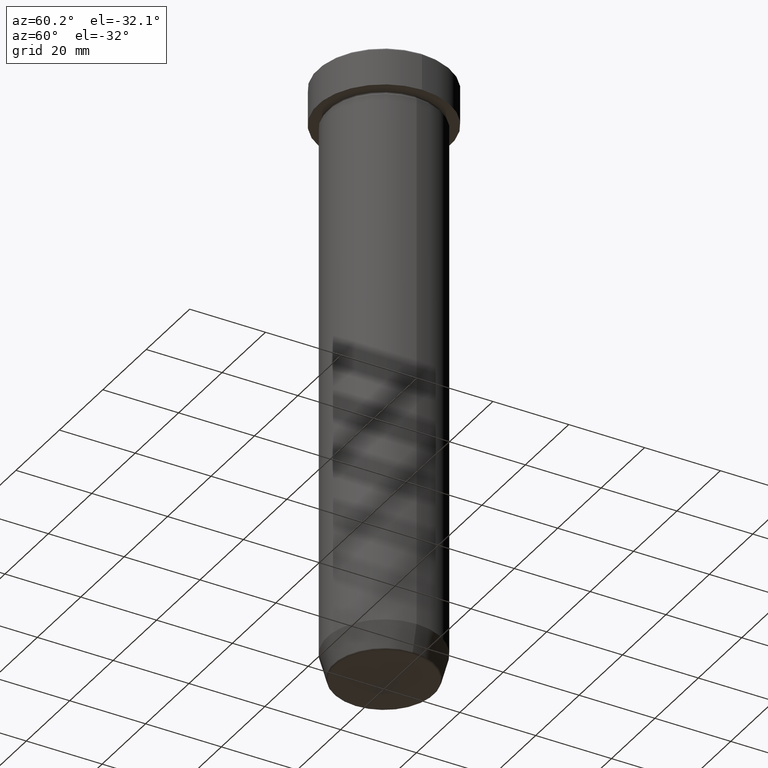
[diagram: clean part render]
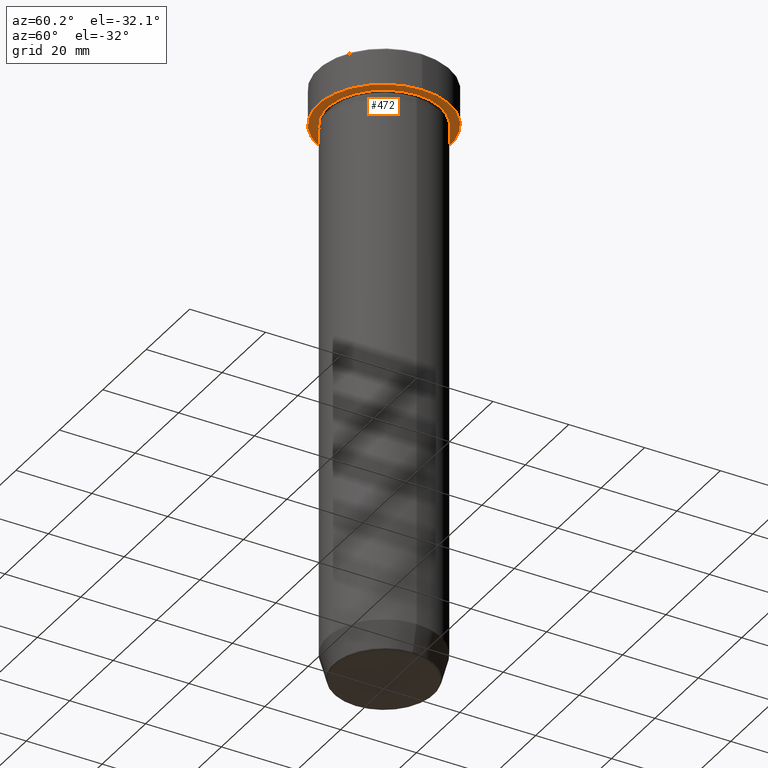
[diagram: same view with one face highlighted and labeled with its STEP entity id]
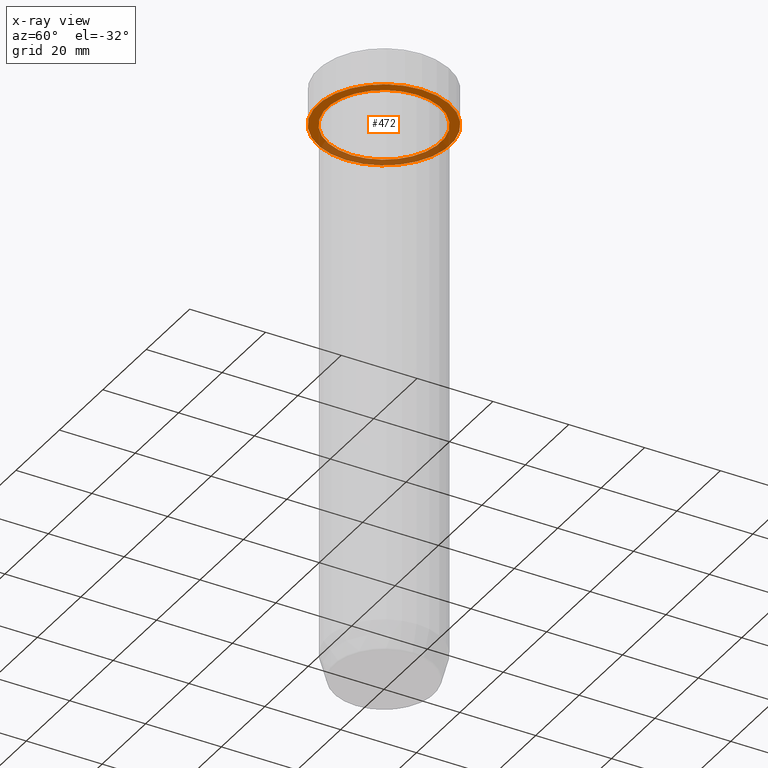
[diagram: x-ray of the same camera — body ghosted, the highlighted face saturated]
A machine part, auxiliary view. The second image highlights one B-rep face of the part: STEP entity #472.
The next image is the same camera in x-ray: the body ghosted, the highlighted face saturated — about 33% of this face is hidden behind the body in this view.
In plain terms, the highlighted planar face has unit normal (0, 0, -1).
Its self-contained STEP definition (entity closure, byte-faithful):
#14 = AXIS2_PLACEMENT_3D ( 'NONE', #116, #70, #536 ) ;
#19 = EDGE_LOOP ( 'NONE', ( #355, #568 ) ) ;
#44 = CARTESIAN_POINT ( 'NONE',  ( 17.50000000000000000, 0.000000000000000000, -9.999999999999998224 ) ) ;
#46 = EDGE_CURVE ( 'NONE', #60, #504, #89, .T. ) ;
#57 = AXIS2_PLACEMENT_3D ( 'NONE', #598, #92, #264 ) ;
#60 = VERTEX_POINT ( 'NONE', #245 ) ;
#64 = CARTESIAN_POINT ( 'NONE',  ( 0.000000000000000000, 0.000000000000000000, -9.999999999999998224 ) ) ;
#70 = DIRECTION ( 'NONE',  ( -0.000000000000000000, -0.000000000000000000, 1.000000000000000000 ) ) ;
#82 = DIRECTION ( 'NONE',  ( -0.000000000000000000, -0.000000000000000000, 1.000000000000000000 ) ) ;
#89 = CIRCLE ( 'NONE', #154, 17.50000000000000000 ) ;
#92 = DIRECTION ( 'NONE',  ( 0.000000000000000000, 0.000000000000000000, -1.000000000000000000 ) ) ;
#111 = EDGE_LOOP ( 'NONE', ( #164, #201 ) ) ;
#116 = CARTESIAN_POINT ( 'NONE',  ( 0.000000000000000000, 0.000000000000000000, -9.999999999999998224 ) ) ;
#131 = PLANE ( 'NONE',  #57 ) ;
#148 = EDGE_CURVE ( 'NONE', #422, #287, #475, .T. ) ;
#154 = AXIS2_PLACEMENT_3D ( 'NONE', #214, #82, #286 ) ;
#164 = ORIENTED_EDGE ( 'NONE', *, *, #352, .F. ) ;
#175 = FACE_BOUND ( 'NONE', #19, .T. ) ;
#201 = ORIENTED_EDGE ( 'NONE', *, *, #46, .F. ) ;
#214 = CARTESIAN_POINT ( 'NONE',  ( 0.000000000000000000, 0.000000000000000000, -9.999999999999998224 ) ) ;
#217 = CARTESIAN_POINT ( 'NONE',  ( 15.00000000000000000, 1.836970198721029589E-15, -9.999999999999998224 ) ) ;
#245 = CARTESIAN_POINT ( 'NONE',  ( -17.50000000000000000, 2.143131898507868248E-15, -9.999999999999998224 ) ) ;
#264 = DIRECTION ( 'NONE',  ( -1.000000000000000000, 0.000000000000000000, -0.000000000000000000 ) ) ;
#268 = CARTESIAN_POINT ( 'NONE',  ( -15.00000000000000000, 0.000000000000000000, -9.999999999999998224 ) ) ;
#281 = DIRECTION ( 'NONE',  ( -0.000000000000000000, -0.000000000000000000, 1.000000000000000000 ) ) ;
#286 = DIRECTION ( 'NONE',  ( 1.000000000000000000, 0.000000000000000000, 0.000000000000000000 ) ) ;
#287 = VERTEX_POINT ( 'NONE', #217 ) ;
#316 = CARTESIAN_POINT ( 'NONE',  ( 0.000000000000000000, 0.000000000000000000, -9.999999999999998224 ) ) ;
#321 = CIRCLE ( 'NONE', #14, 17.50000000000000000 ) ;
#352 = EDGE_CURVE ( 'NONE', #504, #60, #321, .T. ) ;
#353 = DIRECTION ( 'NONE',  ( -1.000000000000000000, 0.000000000000000000, 0.000000000000000000 ) ) ;
#355 = ORIENTED_EDGE ( 'NONE', *, *, #148, .T. ) ;
#364 = CIRCLE ( 'NONE', #442, 15.00000000000000000 ) ;
#408 = EDGE_CURVE ( 'NONE', #287, #422, #364, .T. ) ;
#414 = FACE_OUTER_BOUND ( 'NONE', #111, .T. ) ;
#422 = VERTEX_POINT ( 'NONE', #268 ) ;
#442 = AXIS2_PLACEMENT_3D ( 'NONE', #316, #458, #353 ) ;
#458 = DIRECTION ( 'NONE',  ( -0.000000000000000000, -0.000000000000000000, 1.000000000000000000 ) ) ;
#472 = ADVANCED_FACE ( 'NONE', ( #175, #414 ), #131, .T. ) ;
#475 = CIRCLE ( 'NONE', #563, 15.00000000000000000 ) ;
#504 = VERTEX_POINT ( 'NONE', #44 ) ;
#525 = DIRECTION ( 'NONE',  ( -1.000000000000000000, 0.000000000000000000, 0.000000000000000000 ) ) ;
#536 = DIRECTION ( 'NONE',  ( 1.000000000000000000, 0.000000000000000000, 0.000000000000000000 ) ) ;
#563 = AXIS2_PLACEMENT_3D ( 'NONE', #64, #281, #525 ) ;
#568 = ORIENTED_EDGE ( 'NONE', *, *, #408, .T. ) ;
#598 = CARTESIAN_POINT ( 'NONE',  ( 0.000000000000000000, 17.50000000000000000, -9.999999999999998224 ) ) ;